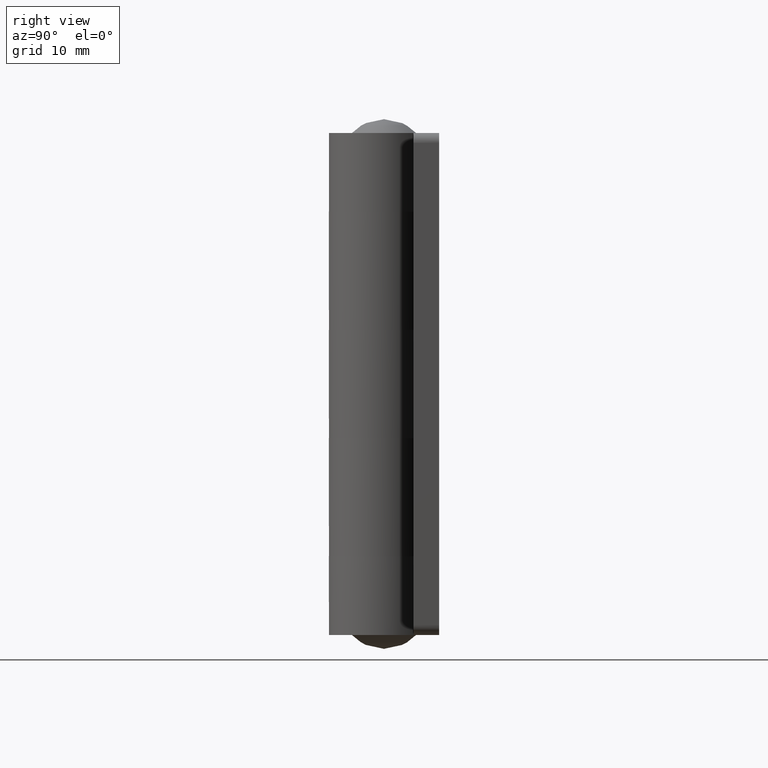
[diagram: clean part render]
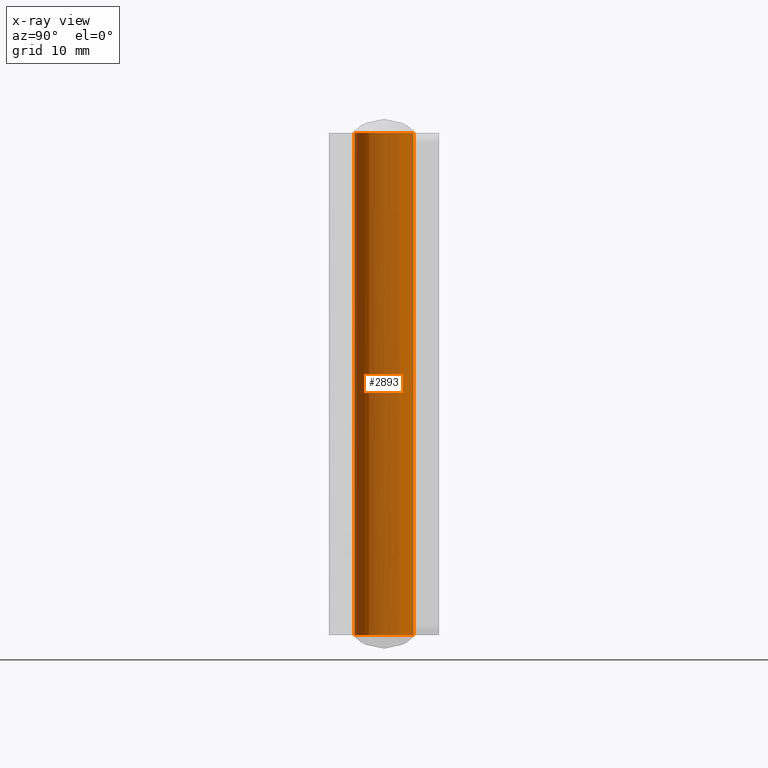
[diagram: x-ray — body ghosted, one internal face saturated and labeled with its STEP entity id]
A machine part, right view, then the same camera in x-ray: the body is ghosted and one INTERNAL B-rep face — a face not visible from any outside direction — is saturated and labeled: STEP entity #2893.
In plain terms, the highlighted face is a freeform B-spline surface patch.
Its self-contained STEP definition (entity closure, byte-faithful):
#2707=CARTESIAN_POINT('',(0.183145618648744,-2.994404395262899,1.110223E-015));
#2708=VERTEX_POINT('',#2707);
#2722=CARTESIAN_POINT('',(-3.0,0.0,0.0));
#2723=VERTEX_POINT('',#2722);
#2724=CARTESIAN_POINT('',(0.183145618648744,-2.994404395262899,0.0));
#2725=CARTESIAN_POINT('',(0.091658289917915,-3.0,0.0));
#2726=CARTESIAN_POINT('',(0.0,-3.0,0.0));
#2727=CARTESIAN_POINT('',(-3.0,-3.0,0.0));
#2728=CARTESIAN_POINT('',(-3.0,0.0,0.0));
#2736=(BOUNDED_CURVE()B_SPLINE_CURVE(2,(#2724,#2725,#2726,#2727,#2728),.UNSPECIFIED.,.F.,.U.)B_SPLINE_CURVE_WITH_KNOTS((3,2,3),(0.739332962239423,0.750000000000000,1.0),.UNSPECIFIED.)CURVE()GEOMETRIC_REPRESENTATION_ITEM()RATIONAL_B_SPLINE_CURVE((0.976072041667746,0.987502787900400,1.0,0.707106781186548,1.0))REPRESENTATION_ITEM(''));
#2737=EDGE_CURVE('',#2708,#2723,#2736,.T.);
#2739=CARTESIAN_POINT('',(-0.183145618648745,2.994404395262899,1.110223E-015));
#2740=VERTEX_POINT('',#2739);
#2741=CARTESIAN_POINT('',(-3.0,0.0,0.0));
#2742=CARTESIAN_POINT('',(-3.000000000000001,2.822118200675375,0.0));
#2743=CARTESIAN_POINT('',(-0.183145618648744,2.994404395262899,0.0));
#2751=(BOUNDED_CURVE()B_SPLINE_CURVE(2,(#2741,#2742,#2743),.UNSPECIFIED.,.F.,.U.)B_SPLINE_CURVE_WITH_KNOTS((3,3),(0.0,0.239332962239423),.UNSPECIFIED.)CURVE()GEOMETRIC_REPRESENTATION_ITEM()RATIONAL_B_SPLINE_CURVE((1.0,0.719603993286148,0.976072041667746))REPRESENTATION_ITEM(''));
#2752=EDGE_CURVE('',#2723,#2740,#2751,.T.);
#2791=CARTESIAN_POINT('',(-0.183145618648744,2.994404395262899,51.0));
#2792=VERTEX_POINT('',#2791);
#2793=CARTESIAN_POINT('',(-0.183145618648744,2.994404395262899,51.0));
#2794=CARTESIAN_POINT('',(-0.183145618648745,2.994404395262899,1.110223E-015));
#2795=QUASI_UNIFORM_CURVE('',1,(#2793,#2794),.UNSPECIFIED.,.F.,.U.);
#2796=EDGE_CURVE('',#2792,#2740,#2795,.T.);
#2815=CARTESIAN_POINT('',(0.183145618648744,-2.994404395262899,51.0));
#2816=VERTEX_POINT('',#2815);
#2830=CARTESIAN_POINT('',(0.183145618648744,-2.994404395262899,51.0));
#2831=CARTESIAN_POINT('',(0.183145618648744,-2.994404395262899,1.110223E-015));
#2832=QUASI_UNIFORM_CURVE('',1,(#2830,#2831),.UNSPECIFIED.,.F.,.U.);
#2833=EDGE_CURVE('',#2816,#2708,#2832,.T.);
#2839=CARTESIAN_POINT('',(0.183145618604571,-2.994404395265600,52.275000000000013));
#2840=CARTESIAN_POINT('',(-2.811258776661029,-3.177550013870171,52.275000000000013));
#2841=CARTESIAN_POINT('',(-2.994404395265600,-0.183145618604571,52.275000000000013));
#2842=CARTESIAN_POINT('',(-3.177550013870171,2.811258776661029,52.275000000000013));
#2843=CARTESIAN_POINT('',(-0.183145618604571,2.994404395265600,52.275000000000013));
#2844=CARTESIAN_POINT('',(0.183145618604571,-2.994404395265600,-1.306875000000005));
#2845=CARTESIAN_POINT('',(-2.811258776661029,-3.177550013870171,-1.306875000000005));
#2846=CARTESIAN_POINT('',(-2.994404395265600,-0.183145618604571,-1.306875000000005));
#2847=CARTESIAN_POINT('',(-3.177550013870171,2.811258776661029,-1.306875000000005));
#2848=CARTESIAN_POINT('',(-0.183145618604571,2.994404395265600,-1.306875000000005));
#2856=(BOUNDED_SURFACE()B_SPLINE_SURFACE(2,1,((#2839,#2844),(#2840,#2845),(#2841,#2846),(#2842,#2847),(#2843,#2848)),.UNSPECIFIED.,.F.,.F.,.U.)B_SPLINE_SURFACE_WITH_KNOTS((3,2,3),(2,2),(0.0,4.970562748477139,9.941125496954278),(0.0,53.581875000000011),.UNSPECIFIED.)GEOMETRIC_REPRESENTATION_ITEM()RATIONAL_B_SPLINE_SURFACE(((1.0,1.0),(0.707106781186548,0.707106781186548),(1.0,1.0),(0.707106781186548,0.707106781186548),(1.0,1.0)))REPRESENTATION_ITEM('')SURFACE());
#2857=ORIENTED_EDGE('',*,*,#2752,.F.);
#2858=ORIENTED_EDGE('',*,*,#2737,.F.);
#2859=ORIENTED_EDGE('',*,*,#2833,.F.);
#2860=CARTESIAN_POINT('',(-3.0,0.0,51.0));
#2861=VERTEX_POINT('',#2860);
#2862=CARTESIAN_POINT('',(0.183145618648744,-2.994404395262899,51.0));
#2863=CARTESIAN_POINT('',(0.091658289917915,-3.0,51.0));
#2864=CARTESIAN_POINT('',(0.0,-3.0,51.0));
#2865=CARTESIAN_POINT('',(-3.0,-3.0,50.999999999999986));
#2866=CARTESIAN_POINT('',(-3.0,0.0,51.0));
#2874=(BOUNDED_CURVE()B_SPLINE_CURVE(2,(#2862,#2863,#2864,#2865,#2866),.UNSPECIFIED.,.F.,.U.)B_SPLINE_CURVE_WITH_KNOTS((3,2,3),(0.739332962239423,0.750000000000000,1.0),.UNSPECIFIED.)CURVE()GEOMETRIC_REPRESENTATION_ITEM()RATIONAL_B_SPLINE_CURVE((0.976072041667746,0.987502787900400,1.0,0.707106781186548,1.0))REPRESENTATION_ITEM(''));
#2875=EDGE_CURVE('',#2816,#2861,#2874,.T.);
#2876=ORIENTED_EDGE('',*,*,#2875,.T.);
#2877=CARTESIAN_POINT('',(-3.0,0.0,51.0));
#2878=CARTESIAN_POINT('',(-3.000000000000001,2.822118200675376,51.0));
#2879=CARTESIAN_POINT('',(-0.183145618648744,2.994404395262899,51.0));
#2887=(BOUNDED_CURVE()B_SPLINE_CURVE(2,(#2877,#2878,#2879),.UNSPECIFIED.,.F.,.U.)B_SPLINE_CURVE_WITH_KNOTS((3,3),(0.0,0.239332962239423),.UNSPECIFIED.)CURVE()GEOMETRIC_REPRESENTATION_ITEM()RATIONAL_B_SPLINE_CURVE((1.0,0.719603993286148,0.976072041667746))REPRESENTATION_ITEM(''));
#2888=EDGE_CURVE('',#2861,#2792,#2887,.T.);
#2889=ORIENTED_EDGE('',*,*,#2888,.T.);
#2890=ORIENTED_EDGE('',*,*,#2796,.T.);
#2891=EDGE_LOOP('',(#2857,#2858,#2859,#2876,#2889,#2890));
#2892=FACE_OUTER_BOUND('',#2891,.T.);
#2893=ADVANCED_FACE('',(#2892),#2856,.T.);